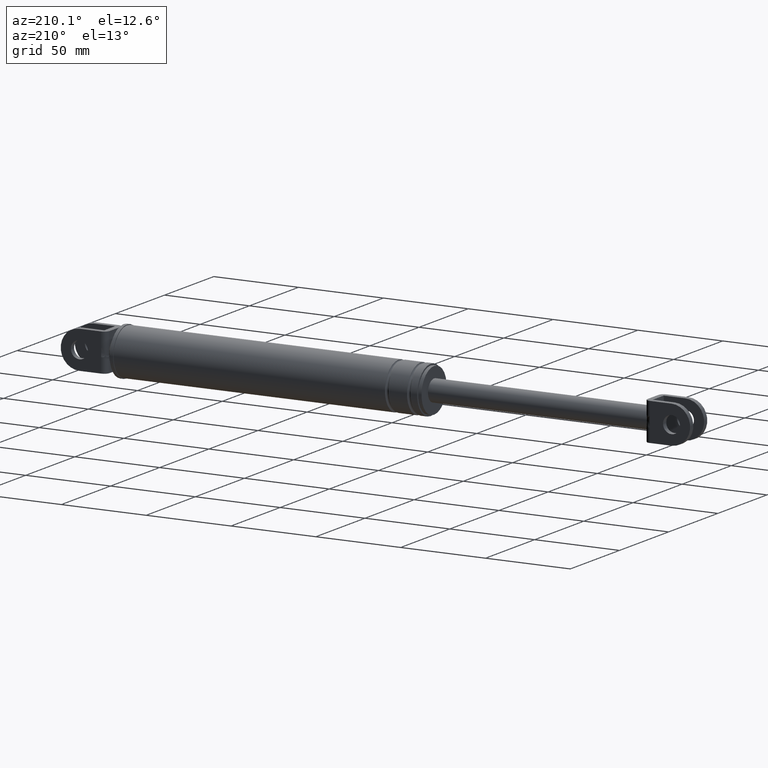
[diagram: clean part render]
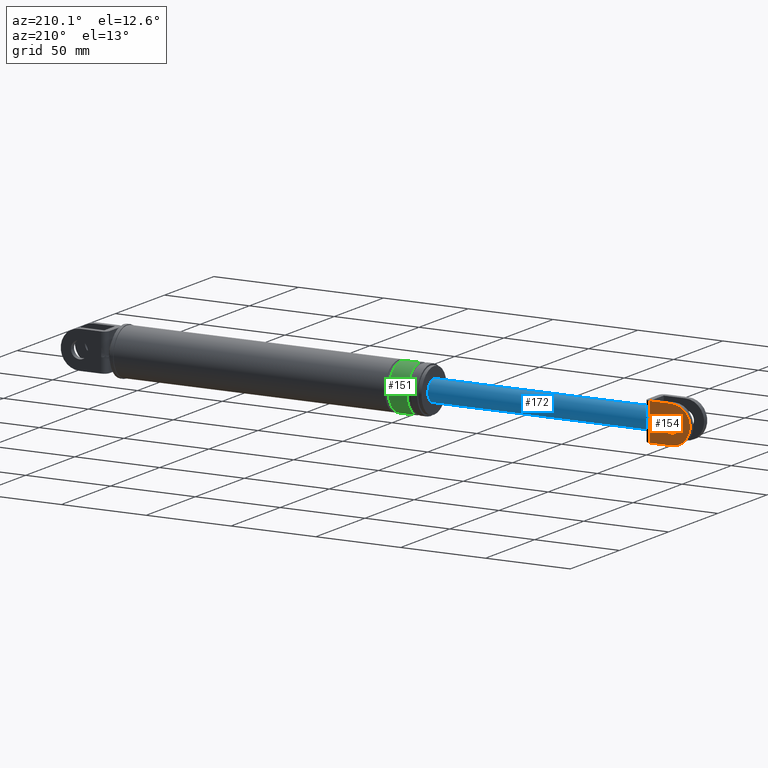
[diagram: same view with three faces highlighted in distinct colors, each labeled with its STEP entity id]
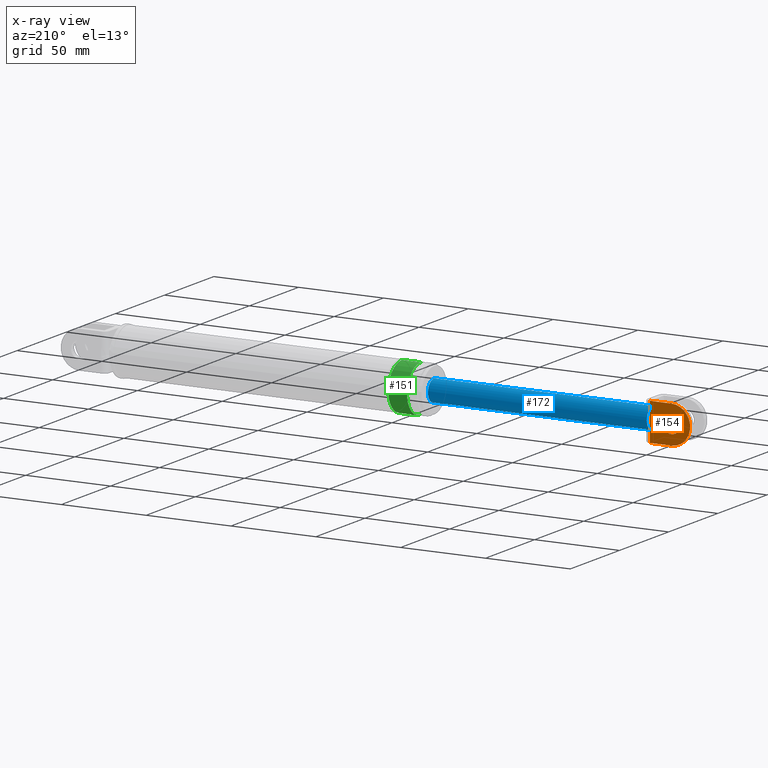
[diagram: x-ray of the same camera — body ghosted, the three highlighted faces saturated]
A machine part, auxiliary view with three faces highlighted in distinct colors.
The next image is the same camera in x-ray (body ghosted, the three faces saturated) — at least one of them is partly hidden behind the body in this view.
Their STEP definitions:

[orange] entity #154 — the highlighted planar face has unit normal (0, 1, 0).
#154=ADVANCED_FACE('',(#604,#605),#603,.T.);
#603=PLANE('',#1260);
#604=FACE_OUTER_BOUND('',#1261,.T.);
#605=FACE_BOUND('',#1262,.T.);
#1257=CARTESIAN_POINT('',(1.68369952370E+001,8.69999700000E+000,1.64170805655E+002));
#1258=DIRECTION('',(0.00000000000E+000,1.00000000000E+000,0.00000000000E+000));
#1259=DIRECTION('',(0.00000000000E+000,0.00000000000E+000,1.00000000000E+000));
#1260=AXIS2_PLACEMENT_3D('',#1257,#1258,#1259);
#1261=EDGE_LOOP('',(#1600,#1601,#1602,#1603,#1604,#1605));
#1262=EDGE_LOOP('',(#1606,#1607));
#1600=ORIENTED_EDGE('',*,*,#1819,.T.);
#1601=ORIENTED_EDGE('',*,*,#1820,.T.);
#1602=ORIENTED_EDGE('',*,*,#1821,.T.);
#1603=ORIENTED_EDGE('',*,*,#1822,.T.);
#1604=ORIENTED_EDGE('',*,*,#1823,.F.);
#1605=ORIENTED_EDGE('',*,*,#1824,.F.);
#1606=ORIENTED_EDGE('',*,*,#1825,.T.);
#1607=ORIENTED_EDGE('',*,*,#1826,.T.);
#1819=EDGE_CURVE('',#2582,#2583,#2584,.T.);
#1820=EDGE_CURVE('',#2583,#2590,#2591,.T.);
#1821=EDGE_CURVE('',#2590,#2597,#2598,.T.);
#1822=EDGE_CURVE('',#2597,#2604,#2605,.T.);
#1823=EDGE_CURVE('',#2611,#2604,#2612,.T.);
#1824=EDGE_CURVE('',#2582,#2611,#2618,.T.);
#1825=EDGE_CURVE('',#2624,#2625,#2626,.T.);
#1826=EDGE_CURVE('',#2625,#2624,#2632,.T.);
#2582=VERTEX_POINT('',#3380);
#2583=VERTEX_POINT('',#3381);
#2584=LINE('',#3382,#3383);
#2590=VERTEX_POINT('',#3385);
#2591=LINE('',#3386,#3387);
#2597=VERTEX_POINT('',#3389);
#2598=(BOUNDED_CURVE() B_SPLINE_CURVE(3,(#3390,#3391,#3392,#3393,#3394,#3395,#3396,#3397,#3398,#3399),.UNSPECIFIED.,.F.,.F.) B_SPLINE_CURVE_WITH_KNOTS((4,2,2,2,4),(0.00000000000E+000,1.48651353192E-003,2.97302706385E-003,4.45954059577E-003,5.94605412770E-003),.UNSPECIFIED.) CURVE() GEOMETRIC_REPRESENTATION_ITEM() RATIONAL_B_SPLINE_CURVE((1.00000000000E+000,1.00000000000E+000,1.00000000000E+000,1.00000000000E+000,1.00000000000E+000,1.00000000000E+000,1.00000000000E+000,1.00000000000E+000,1.00000000000E+000,1.00000000000E+000)) REPRESENTATION_ITEM('') );
#2604=VERTEX_POINT('',#3400);
#2605=LINE('',#3401,#3402);
#2611=VERTEX_POINT('',#3404);
#2612=LINE('',#3405,#3406);
#2618=CIRCLE('',#3411,1.10000000000E+001);
#2624=VERTEX_POINT('',#3412);
#2625=VERTEX_POINT('',#3413);
#2626=CIRCLE('',#3417,5.00000000000E+000);
#2632=CIRCLE('',#3421,5.00000000000E+000);
#3380=CARTESIAN_POINT('',(3.02259104627E+001,8.69999700000E+000,1.88370805655E+002));
#3381=CARTESIAN_POINT('',(4.30259114227E+001,8.69999700000E+000,1.88370805655E+002));
#3382=CARTESIAN_POINT('',(3.02259104627E+001,8.69999700000E+000,1.88370805655E+002));
#3383=VECTOR('',#3384,1.28000009599E+001);
#3384=DIRECTION('',(1.00000000000E+000,0.00000000000E+000,0.00000000000E+000));
#3385=CARTESIAN_POINT('',(4.30259114227E+001,8.69999700000E+000,1.80339396735E+002));
#3386=CARTESIAN_POINT('',(4.30259114227E+001,8.69999700000E+000,1.88370805655E+002));
#3387=VECTOR('',#3388,8.03140892004E+000);
#3388=DIRECTION('',(0.00000000000E+000,0.00000000000E+000,-1.00000000000E+000));
#3389=CARTESIAN_POINT('',(4.30259114227E+001,8.69999700000E+000,1.74402214575E+002));
#3390=CARTESIAN_POINT('',(4.30259114227E+001,8.69999700000E+000,1.80339396735E+002));
#3391=CARTESIAN_POINT('',(4.30259114227E+001,8.69999700000E+000,1.79843890944E+002));
#3392=CARTESIAN_POINT('',(4.30515056036E+001,8.69999700000E+000,1.79349143626E+002));
#3393=CARTESIAN_POINT('',(4.30967580904E+001,8.69999700000E+000,1.78359577478E+002));
#3394=CARTESIAN_POINT('',(4.31150732796E+001,8.69999700000E+000,1.77864342490E+002));
#3395=CARTESIAN_POINT('',(4.31150148407E+001,8.69999700000E+000,1.76874574927E+002));
#3396=CARTESIAN_POINT('',(4.30966751533E+001,8.69999700000E+000,1.76380114867E+002));
#3397=CARTESIAN_POINT('',(4.30514516033E+001,8.69999700000E+000,1.75391392467E+002));
#3398=CARTESIAN_POINT('',(4.30259114227E+001,8.69999700000E+000,1.74897099032E+002));
#3399=CARTESIAN_POINT('',(4.30259114227E+001,8.69999700000E+000,1.74402214575E+002));
#3400=CARTESIAN_POINT('',(4.30259114227E+001,8.69999700000E+000,1.66370805655E+002));
#3401=CARTESIAN_POINT('',(4.30259114227E+001,8.69999700000E+000,1.74402214575E+002));
#3402=VECTOR('',#3403,8.03140892004E+000);
#3403=DIRECTION('',(0.00000000000E+000,0.00000000000E+000,-1.00000000000E+000));
#3404=CARTESIAN_POINT('',(3.02259104627E+001,8.69999700000E+000,1.66370805655E+002));
#3405=CARTESIAN_POINT('',(3.02259104627E+001,8.69999700000E+000,1.66370805655E+002));
#3406=VECTOR('',#3407,1.28000009599E+001);
#3407=DIRECTION('',(1.00000000000E+000,0.00000000000E+000,0.00000000000E+000));
#3408=CARTESIAN_POINT('',(3.02259114227E+001,8.69999700000E+000,1.77370805655E+002));
#3409=DIRECTION('',(0.00000000000E+000,-1.00000000000E+000,0.00000000000E+000));
#3410=DIRECTION('',(-0.00000000000E+000,-0.00000000000E+000,-1.00000000000E+000));
#3411=AXIS2_PLACEMENT_3D('',#3408,#3409,#3410);
#3412=CARTESIAN_POINT('',(3.02259114227E+001,8.69999700000E+000,1.82370805655E+002));
#3413=CARTESIAN_POINT('',(3.02259114227E+001,8.69999700000E+000,1.72370805655E+002));
#3414=CARTESIAN_POINT('',(3.02259114227E+001,8.69999700000E+000,1.77370805655E+002));
#3415=DIRECTION('',(-0.00000000000E+000,-1.00000000000E+000,0.00000000000E+000));
#3416=DIRECTION('',(-1.22460635382E-016,0.00000000000E+000,1.00000000000E+000));
#3417=AXIS2_PLACEMENT_3D('',#3414,#3415,#3416);
#3418=CARTESIAN_POINT('',(3.02259114227E+001,8.69999700000E+000,1.77370805655E+002));
#3419=DIRECTION('',(-0.00000000000E+000,-1.00000000000E+000,0.00000000000E+000));
#3420=DIRECTION('',(-1.22460635382E-016,0.00000000000E+000,1.00000000000E+000));
#3421=AXIS2_PLACEMENT_3D('',#3418,#3419,#3420);

[blue] entity #172 — the highlighted cylindrical surface (edge-blend (fillet) strip) has radius 6.25 mm, axis along (1, 0, 0).
#172=ADVANCED_FACE('',(#787),#786,.T.);
#786=CYLINDRICAL_SURFACE('',#1379,6.25000000000E+000);
#787=FACE_OUTER_BOUND('',#1380,.T.);
#1376=CARTESIAN_POINT('',(0.00000000000E+000,0.00000000000E+000,1.77370805655E+002));
#1377=DIRECTION('',(1.00000000000E+000,-0.00000000000E+000,-0.00000000000E+000));
#1378=DIRECTION('',(-0.00000000000E+000,-0.00000000000E+000,-1.00000000000E+000));
#1379=AXIS2_PLACEMENT_3D('',#1376,#1377,#1378);
#1380=EDGE_LOOP('',(#1692,#1693,#1694,#1695,#1696,#1697));
#1692=ORIENTED_EDGE('',*,*,#1859,.T.);
#1693=ORIENTED_EDGE('',*,*,#1866,.F.);
#1694=ORIENTED_EDGE('',*,*,#1847,.F.);
#1695=ORIENTED_EDGE('',*,*,#1829,.F.);
#1696=ORIENTED_EDGE('',*,*,#1839,.F.);
#1697=ORIENTED_EDGE('',*,*,#1867,.T.);
#1829=EDGE_CURVE('',#2645,#2638,#2652,.T.);
#1839=EDGE_CURVE('',#2711,#2645,#2718,.T.);
#1847=EDGE_CURVE('',#2638,#2772,#2773,.T.);
#1859=EDGE_CURVE('',#2843,#2842,#2850,.T.);
#1866=EDGE_CURVE('',#2772,#2842,#2894,.T.);
#1867=EDGE_CURVE('',#2711,#2843,#2900,.T.);
#2638=VERTEX_POINT('',#3422);
#2645=VERTEX_POINT('',#3427);
#2652=CIRCLE('',#3435,6.25000000000E+000);
#2711=VERTEX_POINT('',#3468);
#2718=CIRCLE('',#3476,6.25000000000E+000);
#2772=VERTEX_POINT('',#3507);
#2773=CIRCLE('',#3511,6.25000000000E+000);
#2842=VERTEX_POINT('',#3547);
#2843=VERTEX_POINT('',#3548);
#2850=CIRCLE('',#3556,6.25000000000E+000);
#2894=(BOUNDED_CURVE() B_SPLINE_CURVE(1,(#3578,#3579),.UNSPECIFIED.,.F.,.F.) B_SPLINE_CURVE_WITH_KNOTS((2,2),(6.71140940856E-002,9.32885905909E-001),.UNSPECIFIED.) CURVE() GEOMETRIC_REPRESENTATION_ITEM() RATIONAL_B_SPLINE_CURVE((1.00000000000E+000,1.00000000000E+000)) REPRESENTATION_ITEM('') );
#2900=(BOUNDED_CURVE() B_SPLINE_CURVE(1,(#3580,#3581),.UNSPECIFIED.,.F.,.F.) B_SPLINE_CURVE_WITH_KNOTS((2,2),(6.71140939597E-002,9.32885906040E-001),.UNSPECIFIED.) CURVE() GEOMETRIC_REPRESENTATION_ITEM() RATIONAL_B_SPLINE_CURVE((7.50000000000E-001,7.50000000000E-001)) REPRESENTATION_ITEM('') );
#3422=CARTESIAN_POINT('',(4.62259114227E+001,5.49999700000E+000,1.74402214575E+002));
#3427=CARTESIAN_POINT('',(4.62259114227E+001,5.49999700000E+000,1.80339396735E+002));
#3432=CARTESIAN_POINT('',(4.62259114227E+001,0.00000000000E+000,1.77370805655E+002));
#3433=DIRECTION('',(-1.00000000000E+000,0.00000000000E+000,0.00000000000E+000));
#3434=DIRECTION('',(-0.00000000000E+000,-0.00000000000E+000,-1.00000000000E+000));
#3435=AXIS2_PLACEMENT_3D('',#3432,#3433,#3434);
#3468=CARTESIAN_POINT('',(4.62259114227E+001,7.89135251338E-007,1.83620805655E+002));
#3473=CARTESIAN_POINT('',(4.62259114227E+001,0.00000000000E+000,1.77370805655E+002));
#3474=DIRECTION('',(-1.00000000000E+000,0.00000000000E+000,0.00000000000E+000));
#3475=DIRECTION('',(-0.00000000000E+000,-0.00000000000E+000,-1.00000000000E+000));
#3476=AXIS2_PLACEMENT_3D('',#3473,#3474,#3475);
#3507=CARTESIAN_POINT('',(4.62259114227E+001,4.27327436247E-012,1.71120805655E+002));
#3508=CARTESIAN_POINT('',(4.62259114227E+001,0.00000000000E+000,1.77370805655E+002));
#3509=DIRECTION('',(-1.00000000000E+000,0.00000000000E+000,0.00000000000E+000));
#3510=DIRECTION('',(-0.00000000000E+000,8.79999520000E-001,-4.74974572793E-001));
#3511=AXIS2_PLACEMENT_3D('',#3508,#3509,#3510);
#3547=CARTESIAN_POINT('',(1.75225911423E+002,0.00000000000E+000,1.71120805655E+002));
#3548=CARTESIAN_POINT('',(1.75225911423E+002,0.00000000000E+000,1.83620805655E+002));
#3553=CARTESIAN_POINT('',(1.75225911423E+002,0.00000000000E+000,1.77370805655E+002));
#3554=DIRECTION('',(-1.00000000000E+000,0.00000000000E+000,0.00000000000E+000));
#3555=DIRECTION('',(0.00000000000E+000,-1.22460635382E-016,1.00000000000E+000));
#3556=AXIS2_PLACEMENT_3D('',#3553,#3554,#3555);
#3578=CARTESIAN_POINT('',(4.62259114414E+001,0.00000000000E+000,1.71120805655E+002));
#3579=CARTESIAN_POINT('',(1.75225911403E+002,0.00000000000E+000,1.71120805655E+002));
#3580=CARTESIAN_POINT('',(4.62259114227E+001,0.00000000000E+000,1.83620805655E+002));
#3581=CARTESIAN_POINT('',(1.75225911423E+002,0.00000000000E+000,1.83620805655E+002));

[green] entity #151 — the highlighted cylindrical surface (edge-blend (fillet) strip) has radius 13.7 mm, axis along (1, 0, 0).
#151=ADVANCED_FACE('',(#573),#572,.T.);
#572=CYLINDRICAL_SURFACE('',#1218,1.37000000000E+001);
#573=FACE_OUTER_BOUND('',#1219,.T.);
#1215=CARTESIAN_POINT('',(0.00000000000E+000,0.00000000000E+000,1.77370805655E+002));
#1216=DIRECTION('',(1.00000000000E+000,-0.00000000000E+000,-0.00000000000E+000));
#1217=DIRECTION('',(0.00000000000E+000,1.22464679915E-016,1.00000000000E+000));
#1218=AXIS2_PLACEMENT_3D('',#1215,#1216,#1217);
#1219=EDGE_LOOP('',(#1584,#1585,#1586,#1587));
#1584=ORIENTED_EDGE('',*,*,#1786,.F.);
#1585=ORIENTED_EDGE('',*,*,#1806,.T.);
#1586=ORIENTED_EDGE('',*,*,#1792,.T.);
#1587=ORIENTED_EDGE('',*,*,#1807,.F.);
#1786=EDGE_CURVE('',#2364,#2365,#2366,.T.);
#1792=EDGE_CURVE('',#2405,#2398,#2406,.T.);
#1806=EDGE_CURVE('',#2364,#2405,#2494,.T.);
#1807=EDGE_CURVE('',#2365,#2398,#2500,.T.);
#2364=VERTEX_POINT('',#3234);
#2365=VERTEX_POINT('',#3235);
#2366=CIRCLE('',#3239,1.37000000000E+001);
#2398=VERTEX_POINT('',#3262);
#2405=VERTEX_POINT('',#3268);
#2406=CIRCLE('',#3272,1.37000000000E+001);
#2494=(BOUNDED_CURVE() B_SPLINE_CURVE(1,(#3320,#3321),.UNSPECIFIED.,.F.,.F.) B_SPLINE_CURVE_WITH_KNOTS((2,2),(8.33333343261E-002,9.16666667006E-001),.UNSPECIFIED.) CURVE() GEOMETRIC_REPRESENTATION_ITEM() RATIONAL_B_SPLINE_CURVE((1.00000000000E+000,1.00000000000E+000)) REPRESENTATION_ITEM('') );
#2500=(BOUNDED_CURVE() B_SPLINE_CURVE(1,(#3322,#3323),.UNSPECIFIED.,.F.,.F.) B_SPLINE_CURVE_WITH_KNOTS((2,2),(8.33333333333E-002,9.16666666667E-001),.UNSPECIFIED.) CURVE() GEOMETRIC_REPRESENTATION_ITEM() RATIONAL_B_SPLINE_CURVE((7.50000000000E-001,7.50000000000E-001)) REPRESENTATION_ITEM('') );
#3234=CARTESIAN_POINT('',(1.83225911423E+002,0.00000000000E+000,1.91070805655E+002));
#3235=CARTESIAN_POINT('',(1.83225911423E+002,0.00000000000E+000,1.63670805655E+002));
#3236=CARTESIAN_POINT('',(1.83225911423E+002,0.00000000000E+000,1.77370805655E+002));
#3237=DIRECTION('',(-1.00000000000E+000,0.00000000000E+000,0.00000000000E+000));
#3238=DIRECTION('',(0.00000000000E+000,-1.22460635382E-016,1.00000000000E+000));
#3239=AXIS2_PLACEMENT_3D('',#3236,#3237,#3238);
#3262=CARTESIAN_POINT('',(1.94225911423E+002,0.00000000000E+000,1.63670805655E+002));
#3268=CARTESIAN_POINT('',(1.94225911423E+002,0.00000000000E+000,1.91070805655E+002));
#3269=CARTESIAN_POINT('',(1.94225911423E+002,0.00000000000E+000,1.77370805655E+002));
#3270=DIRECTION('',(-1.00000000000E+000,0.00000000000E+000,0.00000000000E+000));
#3271=DIRECTION('',(0.00000000000E+000,-1.22460635382E-016,1.00000000000E+000));
#3272=AXIS2_PLACEMENT_3D('',#3269,#3270,#3271);
#3320=CARTESIAN_POINT('',(1.83225911436E+002,1.67776611483E-015,1.91070805655E+002));
#3321=CARTESIAN_POINT('',(1.94225911427E+002,1.67776611483E-015,1.91070805655E+002));
#3322=CARTESIAN_POINT('',(1.83225911423E+002,-5.92118946467E-016,1.63670805655E+002));
#3323=CARTESIAN_POINT('',(1.94225911423E+002,-5.92118946467E-016,1.63670805655E+002));